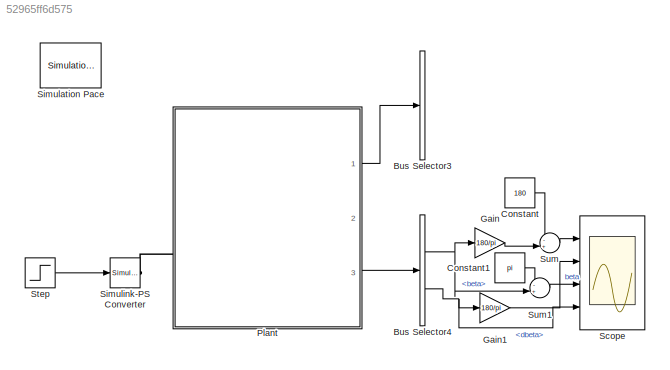
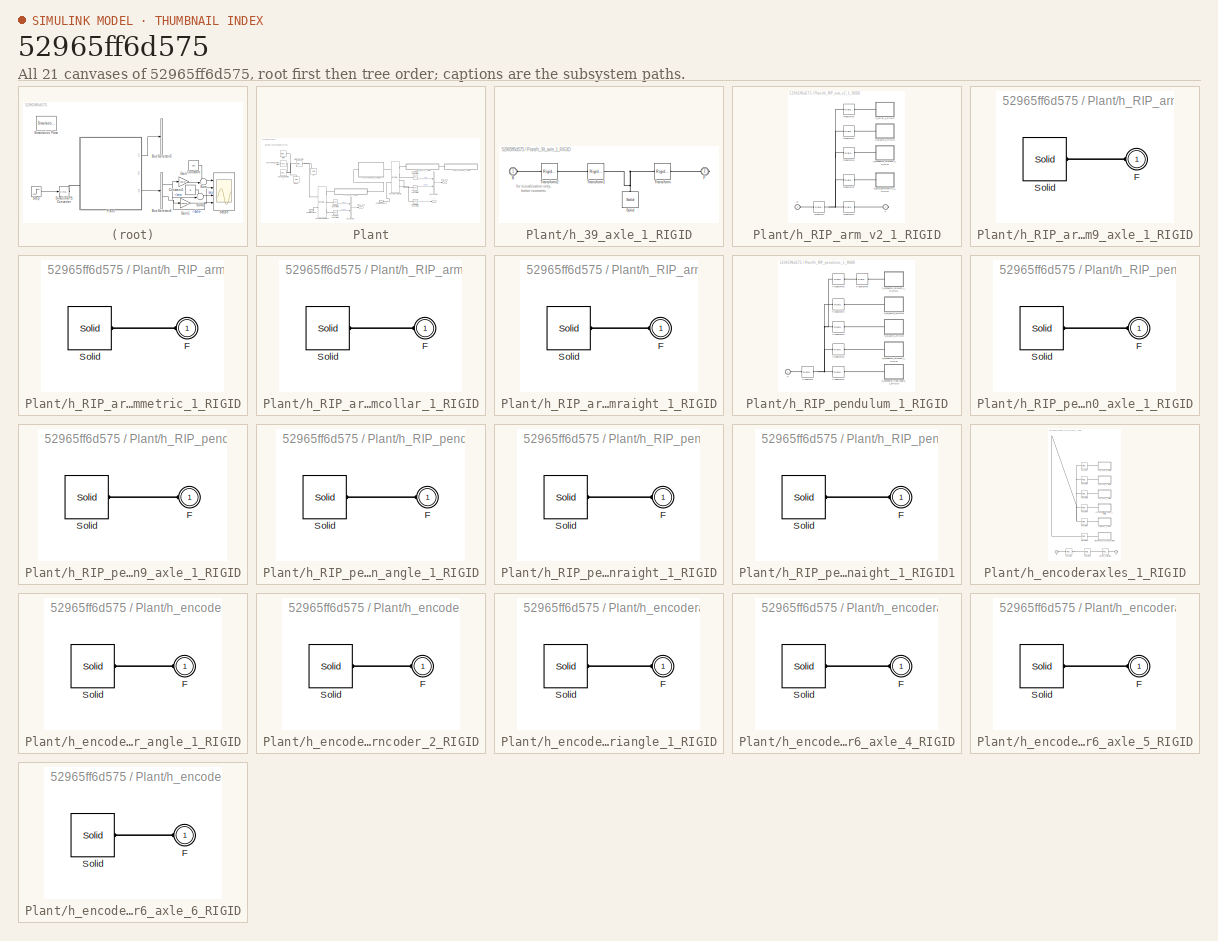
[diagram: thumbnail index - all 21 canvases of the model, root first then tree order]
MODEL slx_52965ff6d575
KIND model
CONFIG AbsTol = auto
CONFIG EnableMultiTasking = on
CONFIG FixedStep = auto
CONFIG MaxStep = 1e-3
CONFIG MinStep = auto
CONFIG PreLoadFcn = RotaryPendulum_PARAM
CONFIG RelTol = 1e-3
CONFIG SampleTimeConstraint = Unconstrained
CONFIG Solver = ode23s
CONFIG SolverName = ode23s
CONFIG StartTime = 0.0
CONFIG StopTime = 2
BLOCK [BusSelector] Bus Selector3
  OutputAsBus = off
  OutputSignals = alpha,dalpha
  Ports = [1, 2]
BLOCK [BusSelector] Bus Selector4
  OutputAsBus = off
  OutputSignals = beta,dbeta
  Ports = [1, 2]
BLOCK [Constant] Constant
  Value = 180
BLOCK [Constant] Constant1
  Value = pi
BLOCK [Gain] Gain
  Gain = 180/pi
  OutDataTypeStr = Inherit: Inherit via internal rule
  ParamDataTypeStr = Inherit: Inherit via internal rule
  SaturateOnIntegerOverflow = off
BLOCK [Gain] Gain1
  Gain = 180/pi
  OutDataTypeStr = Inherit: Inherit via internal rule
  ParamDataTypeStr = Inherit: Inherit via internal rule
  SaturateOnIntegerOverflow = off
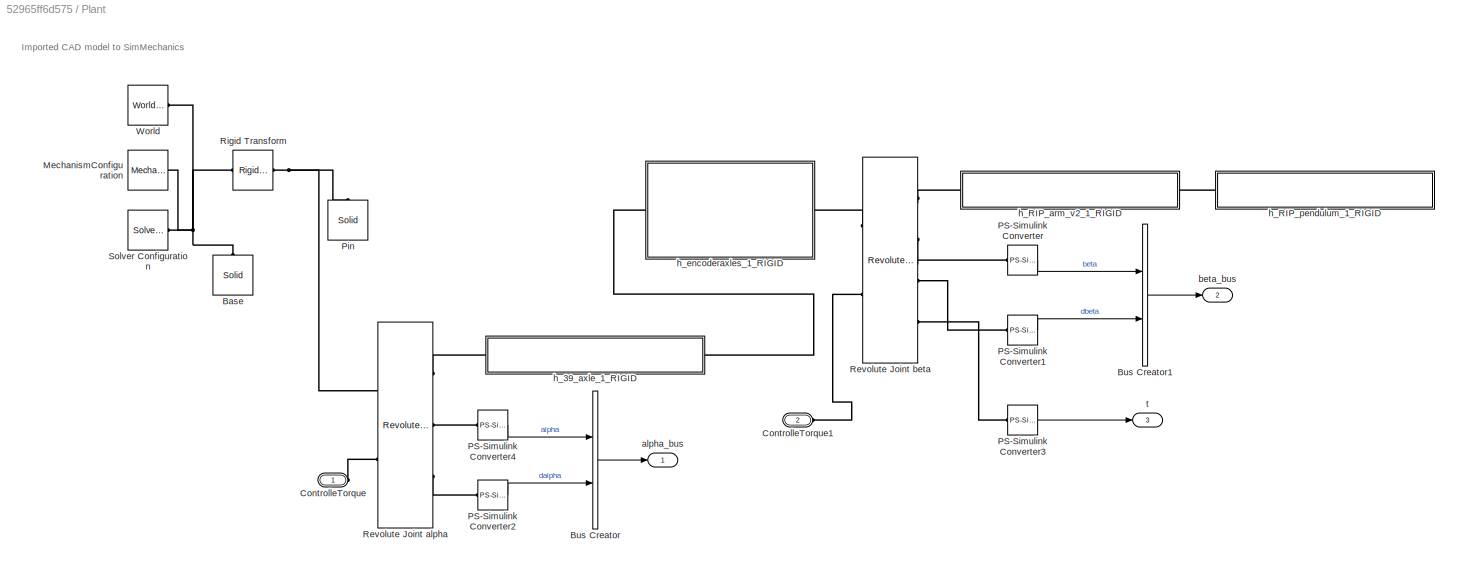
BLOCK [SubSystem] Plant
  Ports = [0, 3, 0, 0, 0, 2]
  RequestExecContextInheritance = off
BLOCK [Reference] Plant/Base  REF=sm_lib/Body Elements/Solid
  Ports = [0, 0, 0, 0, 0, 0, 1]
  SourceBlock = sm_lib/Body Elements/Solid
  SourceProductBaseCode = MS
  SourceProductName = Simscape Multibody
  SourceType = Solid
BLOCK [BusCreator] Plant/Bus Creator
  DisplayOption = bar
  InheritFromInputs = on
  Inputs = 2
  Ports = [2, 1]
BLOCK [BusCreator] Plant/Bus Creator1
  DisplayOption = bar
  InheritFromInputs = on
  Inputs = 2
  Ports = [2, 1]
BLOCK [PMIOPort] Plant/ControlleTorque
  Side = Left
BLOCK [PMIOPort] Plant/ControlleTorque1
  Port = 2
  Side = Left
BLOCK [Reference] Plant/MechanismConfiguration  REF=sm_lib/Utilities/Mechanism
Configuration
  Ports = [0, 0, 0, 0, 0, 0, 1]
  SourceBlock = sm_lib/Utilities/Mechanism\nConfiguration
  SourceProductBaseCode = MS
  SourceProductName = Simscape Multibody
  SourceType = Mechanism\nConfiguration
BLOCK [Reference] Plant/PS-Simulink Converter  REF=nesl_utility/PS-Simulink
Converter
  Ports = [0, 1, 0, 0, 0, 1]
  SourceBlock = nesl_utility/PS-Simulink\nConverter
  SourceProductBaseCode = SS
  SourceProductName = Simscape
  SourceType = PS-Simulink\nConverter
BLOCK [Reference] Plant/PS-Simulink Converter1  REF=nesl_utility/PS-Simulink
Converter
  Ports = [0, 1, 0, 0, 0, 1]
  SourceBlock = nesl_utility/PS-Simulink\nConverter
  SourceProductBaseCode = SS
  SourceProductName = Simscape
  SourceType = PS-Simulink\nConverter
BLOCK [Reference] Plant/PS-Simulink Converter2  REF=nesl_utility/PS-Simulink
Converter
  Ports = [0, 1, 0, 0, 0, 1]
  SourceBlock = nesl_utility/PS-Simulink\nConverter
  SourceProductBaseCode = SS
  SourceProductName = Simscape
  SourceType = PS-Simulink\nConverter
BLOCK [Reference] Plant/PS-Simulink Converter3  REF=nesl_utility/PS-Simulink
Converter
  Ports = [0, 1, 0, 0, 0, 1]
  SourceBlock = nesl_utility/PS-Simulink\nConverter
  SourceProductBaseCode = SS
  SourceProductName = Simscape
  SourceType = PS-Simulink\nConverter
BLOCK [Reference] Plant/PS-Simulink Converter4  REF=nesl_utility/PS-Simulink
Converter
  Ports = [0, 1, 0, 0, 0, 1]
  SourceBlock = nesl_utility/PS-Simulink\nConverter
  SourceProductBaseCode = SS
  SourceProductName = Simscape
  SourceType = PS-Simulink\nConverter
BLOCK [Reference] Plant/Pin  REF=sm_lib/Body Elements/Solid
  Ports = [0, 0, 0, 0, 0, 0, 1]
  SourceBlock = sm_lib/Body Elements/Solid
  SourceProductBaseCode = MS
  SourceProductName = Simscape Multibody
  SourceType = Solid
BLOCK [Reference] Plant/Revolute Joint alpha  REF=sm_lib/Joints/Revolute Joint
  Ports = [0, 0, 0, 0, 0, 2, 3]
  SourceBlock = sm_lib/Joints/Revolute Joint
  SourceProductBaseCode = MS
  SourceProductName = Simscape Multibody
  SourceType = Revolute Joint
BLOCK [Reference] Plant/Revolute Joint beta  REF=sm_lib/Joints/Revolute Joint
  Ports = [0, 0, 0, 0, 0, 2, 4]
  SourceBlock = sm_lib/Joints/Revolute Joint
  SourceProductBaseCode = MS
  SourceProductName = Simscape Multibody
  SourceType = Revolute Joint
BLOCK [Reference] Plant/Rigid Transform  REF=sm_lib/Frames and
Transforms/Rigid
Transform
  Ports = [0, 0, 0, 0, 0, 1, 1]
  SourceBlock = sm_lib/Frames and\nTransforms/Rigid\nTransform
  SourceProductBaseCode = MS
  SourceProductName = Simscape Multibody
  SourceType = Rigid\nTransform
BLOCK [Reference] Plant/Solver Configuration  REF=nesl_utility/Solver
Configuration
  Ports = [0, 0, 0, 0, 0, 0, 1]
  SourceBlock = nesl_utility/Solver\nConfiguration
  SourceProductBaseCode = SS
  SourceProductName = Simscape
  SourceType = Solver\nConfiguration
BLOCK [Reference] Plant/World  REF=sm_lib/Frames and
Transforms/World Frame
  Ports = [0, 0, 0, 0, 0, 0, 1]
  SourceBlock = sm_lib/Frames and\nTransforms/World Frame
  SourceProductBaseCode = MS
  SourceProductName = Simscape Multibody
  SourceType = World Frame
BLOCK [Outport] Plant/alpha_bus
  IconDisplay = Port number
BLOCK [Outport] Plant/beta_bus
  IconDisplay = Port number
  Port = 2
BLOCK [SubSystem] Plant/h_39_axle_1_RIGID
  Ports = [0, 0, 0, 0, 0, 1, 1]
  RequestExecContextInheritance = off
BLOCK [PMIOPort] Plant/h_39_axle_1_RIGID/B
  Side = Left
BLOCK [PMIOPort] Plant/h_39_axle_1_RIGID/F
  Port = 2
  Side = Right
BLOCK [Reference] Plant/h_39_axle_1_RIGID/Solid  REF=sm_lib/Body Elements/Solid
  Ports = [0, 0, 0, 0, 0, 0, 1]
  SourceBlock = sm_lib/Body Elements/Solid
  SourceProductBaseCode = MS
  SourceProductName = Simscape Multibody
  SourceType = Solid
BLOCK [Reference] Plant/h_39_axle_1_RIGID/Transform  REF=sm_lib/Frames and
Transforms/Rigid
Transform
  Ports = [0, 0, 0, 0, 0, 1, 1]
  SourceBlock = sm_lib/Frames and\nTransforms/Rigid\nTransform
  SourceProductBaseCode = MS
  SourceProductName = Simscape Multibody
  SourceType = Rigid\nTransform
BLOCK [Reference] Plant/h_39_axle_1_RIGID/Transform1  REF=sm_lib/Frames and
Transforms/Rigid
Transform
  Ports = [0, 0, 0, 0, 0, 1, 1]
  SourceBlock = sm_lib/Frames and\nTransforms/Rigid\nTransform
  SourceProductBaseCode = MS
  SourceProductName = Simscape Multibody
  SourceType = Rigid\nTransform
BLOCK [Reference] Plant/h_39_axle_1_RIGID/Transform2  REF=sm_lib/Frames and
Transforms/Rigid
Transform
  Ports = [0, 0, 0, 0, 0, 1, 1]
  SourceBlock = sm_lib/Frames and\nTransforms/Rigid\nTransform
  SourceProductBaseCode = MS
  SourceProductName = Simscape Multibody
  SourceType = Rigid\nTransform
BLOCK [SubSystem] Plant/h_RIP_arm_v2_1_RIGID
  Ports = [0, 0, 0, 0, 0, 1, 1]
  RequestExecContextInheritance = off
BLOCK [PMIOPort] Plant/h_RIP_arm_v2_1_RIGID/B
  Side = Left
BLOCK [PMIOPort] Plant/h_RIP_arm_v2_1_RIGID/F
  Port = 2
  Side = Right
BLOCK [Reference] Plant/h_RIP_arm_v2_1_RIGID/Transform  REF=sm_lib/Frames and
Transforms/Rigid
Transform
  Ports = [0, 0, 0, 0, 0, 1, 1]
  SourceBlock = sm_lib/Frames and\nTransforms/Rigid\nTransform
  SourceProductBaseCode = MS
  SourceProductName = Simscape Multibody
  SourceType = Rigid\nTransform
BLOCK [Reference] Plant/h_RIP_arm_v2_1_RIGID/Transform1  REF=sm_lib/Frames and
Transforms/Rigid
Transform
  Ports = [0, 0, 0, 0, 0, 1, 1]
  SourceBlock = sm_lib/Frames and\nTransforms/Rigid\nTransform
  SourceProductBaseCode = MS
  SourceProductName = Simscape Multibody
  SourceType = Rigid\nTransform
BLOCK [Reference] Plant/h_RIP_arm_v2_1_RIGID/Transform2  REF=sm_lib/Frames and
Transforms/Rigid
Transform
  Ports = [0, 0, 0, 0, 0, 1, 1]
  SourceBlock = sm_lib/Frames and\nTransforms/Rigid\nTransform
  SourceProductBaseCode = MS
  SourceProductName = Simscape Multibody
  SourceType = Rigid\nTransform
BLOCK [Reference] Plant/h_RIP_arm_v2_1_RIGID/Transform3  REF=sm_lib/Frames and
Transforms/Rigid
Transform
  Ports = [0, 0, 0, 0, 0, 1, 1]
  SourceBlock = sm_lib/Frames and\nTransforms/Rigid\nTransform
  SourceProductBaseCode = MS
  SourceProductName = Simscape Multibody
  SourceType = Rigid\nTransform
BLOCK [Reference] Plant/h_RIP_arm_v2_1_RIGID/Transform4  REF=sm_lib/Frames and
Transforms/Rigid
Transform
  Ports = [0, 0, 0, 0, 0, 1, 1]
  SourceBlock = sm_lib/Frames and\nTransforms/Rigid\nTransform
  SourceProductBaseCode = MS
  SourceProductName = Simscape Multibody
  SourceType = Rigid\nTransform
BLOCK [Reference] Plant/h_RIP_arm_v2_1_RIGID/Transform5  REF=sm_lib/Frames and
Transforms/Rigid
Transform
  Ports = [0, 0, 0, 0, 0, 1, 1]
  SourceBlock = sm_lib/Frames and\nTransforms/Rigid\nTransform
  SourceProductBaseCode = MS
  SourceProductName = Simscape Multibody
  SourceType = Rigid\nTransform
BLOCK [SubSystem] Plant/h_RIP_arm_v2_1_RIGID/h_39_axle_1_RIGID
  Ports = [0, 0, 0, 0, 0, 1]
  RequestExecContextInheritance = off
BLOCK [PMIOPort] Plant/h_RIP_arm_v2_1_RIGID/h_39_axle_1_RIGID/F
  Side = Left
BLOCK [Reference] Plant/h_RIP_arm_v2_1_RIGID/h_39_axle_1_RIGID/Solid  REF=sm_lib/Body Elements/Solid
  Ports = [0, 0, 0, 0, 0, 0, 1]
  SourceBlock = sm_lib/Body Elements/Solid
  SourceProductBaseCode = MS
  SourceProductName = Simscape Multibody
  SourceType = Solid
BLOCK [SubSystem] Plant/h_RIP_arm_v2_1_RIGID/h_axle_asymmetric_1_RIGID
  Ports = [0, 0, 0, 0, 0, 1]
  RequestExecContextInheritance = off
BLOCK [PMIOPort] Plant/h_RIP_arm_v2_1_RIGID/h_axle_asymmetric_1_RIGID/F
  Side = Left
BLOCK [Reference] Plant/h_RIP_arm_v2_1_RIGID/h_axle_asymmetric_1_RIGID/Solid  REF=sm_lib/Body Elements/Solid
  Ports = [0, 0, 0, 0, 0, 0, 1]
  SourceBlock = sm_lib/Body Elements/Solid
  SourceProductBaseCode = MS
  SourceProductName = Simscape Multibody
  SourceType = Solid
BLOCK [SubSystem] Plant/h_RIP_arm_v2_1_RIGID/h_collar_1_RIGID
  Ports = [0, 0, 0, 0, 0, 1]
  RequestExecContextInheritance = off
BLOCK [PMIOPort] Plant/h_RIP_arm_v2_1_RIGID/h_collar_1_RIGID/F
  Side = Left
BLOCK [Reference] Plant/h_RIP_arm_v2_1_RIGID/h_collar_1_RIGID/Solid  REF=sm_lib/Body Elements/Solid
  Ports = [0, 0, 0, 0, 0, 0, 1]
  SourceBlock = sm_lib/Body Elements/Solid
  SourceProductBaseCode = MS
  SourceProductName = Simscape Multibody
  SourceType = Solid
BLOCK [SubSystem] Plant/h_RIP_arm_v2_1_RIGID/h_connector_straight_1_RIGID
  Ports = [0, 0, 0, 0, 0, 1]
  RequestExecContextInheritance = off
BLOCK [PMIOPort] Plant/h_RIP_arm_v2_1_RIGID/h_connector_straight_1_RIGID/F
  Side = Left
BLOCK [Reference] Plant/h_RIP_arm_v2_1_RIGID/h_connector_straight_1_RIGID/Solid  REF=sm_lib/Body Elements/Solid
  Ports = [0, 0, 0, 0, 0, 0, 1]
  SourceBlock = sm_lib/Body Elements/Solid
  SourceProductBaseCode = MS
  SourceProductName = Simscape Multibody
  SourceType = Solid
BLOCK [SubSystem] Plant/h_RIP_pendulum_1_RIGID
  Ports = [0, 0, 0, 0, 0, 1]
  RequestExecContextInheritance = off
BLOCK [PMIOPort] Plant/h_RIP_pendulum_1_RIGID/F
  Side = Left
BLOCK [Reference] Plant/h_RIP_pendulum_1_RIGID/Transform  REF=sm_lib/Frames and
Transforms/Rigid
Transform
  Ports = [0, 0, 0, 0, 0, 1, 1]
  SourceBlock = sm_lib/Frames and\nTransforms/Rigid\nTransform
  SourceProductBaseCode = MS
  SourceProductName = Simscape Multibody
  SourceType = Rigid\nTransform
BLOCK [Reference] Plant/h_RIP_pendulum_1_RIGID/Transform1  REF=sm_lib/Frames and
Transforms/Rigid
Transform
  Ports = [0, 0, 0, 0, 0, 1, 1]
  SourceBlock = sm_lib/Frames and\nTransforms/Rigid\nTransform
  SourceProductBaseCode = MS
  SourceProductName = Simscape Multibody
  SourceType = Rigid\nTransform
BLOCK [Reference] Plant/h_RIP_pendulum_1_RIGID/Transform2  REF=sm_lib/Frames and
Transforms/Rigid
Transform
  Ports = [0, 0, 0, 0, 0, 1, 1]
  SourceBlock = sm_lib/Frames and\nTransforms/Rigid\nTransform
  SourceProductBaseCode = MS
  SourceProductName = Simscape Multibody
  SourceType = Rigid\nTransform
BLOCK [Reference] Plant/h_RIP_pendulum_1_RIGID/Transform3  REF=sm_lib/Frames and
Transforms/Rigid
Transform
  Ports = [0, 0, 0, 0, 0, 1, 1]
  SourceBlock = sm_lib/Frames and\nTransforms/Rigid\nTransform
  SourceProductBaseCode = MS
  SourceProductName = Simscape Multibody
  SourceType = Rigid\nTransform
BLOCK [Reference] Plant/h_RIP_pendulum_1_RIGID/Transform4  REF=sm_lib/Frames and
Transforms/Rigid
Transform
  Ports = [0, 0, 0, 0, 0, 1, 1]
  SourceBlock = sm_lib/Frames and\nTransforms/Rigid\nTransform
  SourceProductBaseCode = MS
  SourceProductName = Simscape Multibody
  SourceType = Rigid\nTransform
BLOCK [Reference] Plant/h_RIP_pendulum_1_RIGID/Transform5  REF=sm_lib/Frames and
Transforms/Rigid
Transform
  Ports = [0, 0, 0, 0, 0, 1, 1]
  SourceBlock = sm_lib/Frames and\nTransforms/Rigid\nTransform
  SourceProductBaseCode = MS
  SourceProductName = Simscape Multibody
  SourceType = Rigid\nTransform
BLOCK [Reference] Plant/h_RIP_pendulum_1_RIGID/Transform6  REF=sm_lib/Frames and
Transforms/Rigid
Transform
  Ports = [0, 0, 0, 0, 0, 1, 1]
  SourceBlock = sm_lib/Frames and\nTransforms/Rigid\nTransform
  SourceProductBaseCode = MS
  SourceProductName = Simscape Multibody
  SourceType = Rigid\nTransform
BLOCK [SubSystem] Plant/h_RIP_pendulum_1_RIGID/h_10_axle_1_RIGID
  Ports = [0, 0, 0, 0, 0, 1]
  RequestExecContextInheritance = off
BLOCK [PMIOPort] Plant/h_RIP_pendulum_1_RIGID/h_10_axle_1_RIGID/F
  Side = Left
BLOCK [Reference] Plant/h_RIP_pendulum_1_RIGID/h_10_axle_1_RIGID/Solid  REF=sm_lib/Body Elements/Solid
  Ports = [0, 0, 0, 0, 0, 0, 1]
  SourceBlock = sm_lib/Body Elements/Solid
  SourceProductBaseCode = MS
  SourceProductName = Simscape Multibody
  SourceType = Solid
BLOCK [SubSystem] Plant/h_RIP_pendulum_1_RIGID/h_79_axle_1_RIGID
  Ports = [0, 0, 0, 0, 0, 1]
  RequestExecContextInheritance = off
BLOCK [PMIOPort] Plant/h_RIP_pendulum_1_RIGID/h_79_axle_1_RIGID/F
  Side = Left
BLOCK [Reference] Plant/h_RIP_pendulum_1_RIGID/h_79_axle_1_RIGID/Solid  REF=sm_lib/Body Elements/Solid
  Ports = [0, 0, 0, 0, 0, 0, 1]
  SourceBlock = sm_lib/Body Elements/Solid
  SourceProductBaseCode = MS
  SourceProductName = Simscape Multibody
  SourceType = Solid
BLOCK [SubSystem] Plant/h_RIP_pendulum_1_RIGID/h_connector_right_angle_1_RIGID
  Ports = [0, 0, 0, 0, 0, 1]
  RequestExecContextInheritance = off
BLOCK [PMIOPort] Plant/h_RIP_pendulum_1_RIGID/h_connector_right_angle_1_RIGID/F
  Side = Left
BLOCK [Reference] Plant/h_RIP_pendulum_1_RIGID/h_connector_right_angle_1_RIGID/Solid  REF=sm_lib/Body Elements/Solid
  Ports = [0, 0, 0, 0, 0, 0, 1]
  SourceBlock = sm_lib/Body Elements/Solid
  SourceProductBaseCode = MS
  SourceProductName = Simscape Multibody
  SourceType = Solid
BLOCK [SubSystem] Plant/h_RIP_pendulum_1_RIGID/h_connector_straight_1_RIGID
  Ports = [0, 0, 0, 0, 0, 1]
  RequestExecContextInheritance = off
BLOCK [PMIOPort] Plant/h_RIP_pendulum_1_RIGID/h_connector_straight_1_RIGID/F
  Side = Left
BLOCK [Reference] Plant/h_RIP_pendulum_1_RIGID/h_connector_straight_1_RIGID/Solid  REF=sm_lib/Body Elements/Solid
  Ports = [0, 0, 0, 0, 0, 0, 1]
  SourceBlock = sm_lib/Body Elements/Solid
  SourceProductBaseCode = MS
  SourceProductName = Simscape Multibody
  SourceType = Solid
BLOCK [SubSystem] Plant/h_RIP_pendulum_1_RIGID/h_connector_straight_1_RIGID1
  Ports = [0, 0, 0, 0, 0, 1]
  RequestExecContextInheritance = off
BLOCK [PMIOPort] Plant/h_RIP_pendulum_1_RIGID/h_connector_straight_1_RIGID1/F
  Side = Left
BLOCK [Reference] Plant/h_RIP_pendulum_1_RIGID/h_connector_straight_1_RIGID1/Solid  REF=sm_lib/Body Elements/Solid
  Ports = [0, 0, 0, 0, 0, 0, 1]
  SourceBlock = sm_lib/Body Elements/Solid
  SourceProductBaseCode = MS
  SourceProductName = Simscape Multibody
  SourceType = Solid
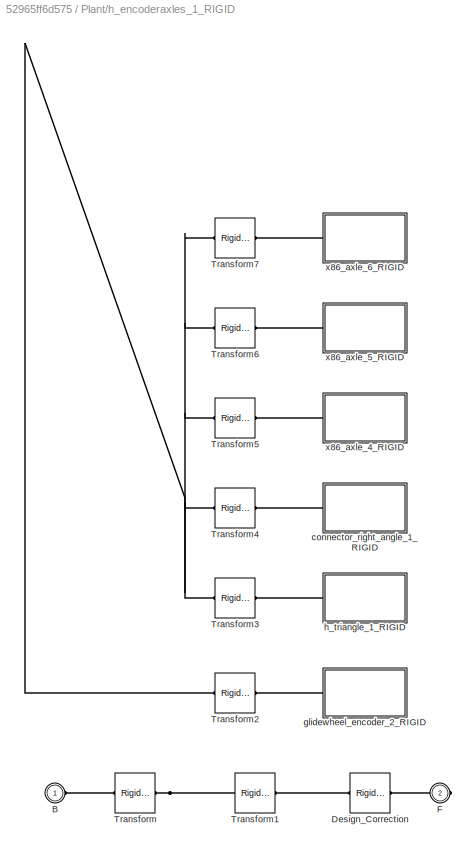
BLOCK [SubSystem] Plant/h_encoderaxles_1_RIGID
  Ports = [0, 0, 0, 0, 0, 1, 1]
  RequestExecContextInheritance = off
BLOCK [PMIOPort] Plant/h_encoderaxles_1_RIGID/B
  Side = Left
BLOCK [Reference] Plant/h_encoderaxles_1_RIGID/Design_Correction  REF=sm_lib/Frames and
Transforms/Rigid
Transform
  Ports = [0, 0, 0, 0, 0, 1, 1]
  SourceBlock = sm_lib/Frames and\nTransforms/Rigid\nTransform
  SourceProductBaseCode = MS
  SourceProductName = Simscape Multibody
  SourceType = Rigid\nTransform
BLOCK [PMIOPort] Plant/h_encoderaxles_1_RIGID/F
  Port = 2
  Side = Right
BLOCK [Reference] Plant/h_encoderaxles_1_RIGID/Transform  REF=sm_lib/Frames and
Transforms/Rigid
Transform
  Ports = [0, 0, 0, 0, 0, 1, 1]
  SourceBlock = sm_lib/Frames and\nTransforms/Rigid\nTransform
  SourceProductBaseCode = MS
  SourceProductName = Simscape Multibody
  SourceType = Rigid\nTransform
BLOCK [Reference] Plant/h_encoderaxles_1_RIGID/Transform1  REF=sm_lib/Frames and
Transforms/Rigid
Transform
  Ports = [0, 0, 0, 0, 0, 1, 1]
  SourceBlock = sm_lib/Frames and\nTransforms/Rigid\nTransform
  SourceProductBaseCode = MS
  SourceProductName = Simscape Multibody
  SourceType = Rigid\nTransform
BLOCK [Reference] Plant/h_encoderaxles_1_RIGID/Transform2  REF=sm_lib/Frames and
Transforms/Rigid
Transform
  Ports = [0, 0, 0, 0, 0, 1, 1]
  SourceBlock = sm_lib/Frames and\nTransforms/Rigid\nTransform
  SourceProductBaseCode = MS
  SourceProductName = Simscape Multibody
  SourceType = Rigid\nTransform
BLOCK [Reference] Plant/h_encoderaxles_1_RIGID/Transform3  REF=sm_lib/Frames and
Transforms/Rigid
Transform
  Ports = [0, 0, 0, 0, 0, 1, 1]
  SourceBlock = sm_lib/Frames and\nTransforms/Rigid\nTransform
  SourceProductBaseCode = MS
  SourceProductName = Simscape Multibody
  SourceType = Rigid\nTransform
BLOCK [Reference] Plant/h_encoderaxles_1_RIGID/Transform4  REF=sm_lib/Frames and
Transforms/Rigid
Transform
  Ports = [0, 0, 0, 0, 0, 1, 1]
  SourceBlock = sm_lib/Frames and\nTransforms/Rigid\nTransform
  SourceProductBaseCode = MS
  SourceProductName = Simscape Multibody
  SourceType = Rigid\nTransform
BLOCK [Reference] Plant/h_encoderaxles_1_RIGID/Transform5  REF=sm_lib/Frames and
Transforms/Rigid
Transform
  Ports = [0, 0, 0, 0, 0, 1, 1]
  SourceBlock = sm_lib/Frames and\nTransforms/Rigid\nTransform
  SourceProductBaseCode = MS
  SourceProductName = Simscape Multibody
  SourceType = Rigid\nTransform
BLOCK [Reference] Plant/h_encoderaxles_1_RIGID/Transform6  REF=sm_lib/Frames and
Transforms/Rigid
Transform
  Ports = [0, 0, 0, 0, 0, 1, 1]
  SourceBlock = sm_lib/Frames and\nTransforms/Rigid\nTransform
  SourceProductBaseCode = MS
  SourceProductName = Simscape Multibody
  SourceType = Rigid\nTransform
BLOCK [Reference] Plant/h_encoderaxles_1_RIGID/Transform7  REF=sm_lib/Frames and
Transforms/Rigid
Transform
  Ports = [0, 0, 0, 0, 0, 1, 1]
  SourceBlock = sm_lib/Frames and\nTransforms/Rigid\nTransform
  SourceProductBaseCode = MS
  SourceProductName = Simscape Multibody
  SourceType = Rigid\nTransform
BLOCK [SubSystem] Plant/h_encoderaxles_1_RIGID/connector_right_angle_1_RIGID
  Ports = [0, 0, 0, 0, 0, 1]
  RequestExecContextInheritance = off
BLOCK [PMIOPort] Plant/h_encoderaxles_1_RIGID/connector_right_angle_1_RIGID/F
  Side = Left
BLOCK [Reference] Plant/h_encoderaxles_1_RIGID/connector_right_angle_1_RIGID/Solid  REF=sm_lib/Body Elements/Solid
  Ports = [0, 0, 0, 0, 0, 0, 1]
  SourceBlock = sm_lib/Body Elements/Solid
  SourceProductBaseCode = MS
  SourceProductName = Simscape Multibody
  SourceType = Solid
BLOCK [SubSystem] Plant/h_encoderaxles_1_RIGID/glidewheel_encoder_2_RIGID
  Ports = [0, 0, 0, 0, 0, 1]
  RequestExecContextInheritance = off
BLOCK [PMIOPort] Plant/h_encoderaxles_1_RIGID/glidewheel_encoder_2_RIGID/F
  Side = Left
BLOCK [Reference] Plant/h_encoderaxles_1_RIGID/glidewheel_encoder_2_RIGID/Solid  REF=sm_lib/Body Elements/Solid
  Ports = [0, 0, 0, 0, 0, 0, 1]
  SourceBlock = sm_lib/Body Elements/Solid
  SourceProductBaseCode = MS
  SourceProductName = Simscape Multibody
  SourceType = Solid
BLOCK [SubSystem] Plant/h_encoderaxles_1_RIGID/h_triangle_1_RIGID
  Ports = [0, 0, 0, 0, 0, 1]
  RequestExecContextInheritance = off
BLOCK [PMIOPort] Plant/h_encoderaxles_1_RIGID/h_triangle_1_RIGID/F
  Side = Left
BLOCK [Reference] Plant/h_encoderaxles_1_RIGID/h_triangle_1_RIGID/Solid  REF=sm_lib/Body Elements/Solid
  Ports = [0, 0, 0, 0, 0, 0, 1]
  SourceBlock = sm_lib/Body Elements/Solid
  SourceProductBaseCode = MS
  SourceProductName = Simscape Multibody
  SourceType = Solid
BLOCK [SubSystem] Plant/h_encoderaxles_1_RIGID/x86_axle_4_RIGID
  Ports = [0, 0, 0, 0, 0, 1]
  RequestExecContextInheritance = off
BLOCK [PMIOPort] Plant/h_encoderaxles_1_RIGID/x86_axle_4_RIGID/F
  Side = Left
BLOCK [Reference] Plant/h_encoderaxles_1_RIGID/x86_axle_4_RIGID/Solid  REF=sm_lib/Body Elements/Solid
  Ports = [0, 0, 0, 0, 0, 0, 1]
  SourceBlock = sm_lib/Body Elements/Solid
  SourceProductBaseCode = MS
  SourceProductName = Simscape Multibody
  SourceType = Solid
BLOCK [SubSystem] Plant/h_encoderaxles_1_RIGID/x86_axle_5_RIGID
  Ports = [0, 0, 0, 0, 0, 1]
  RequestExecContextInheritance = off
BLOCK [PMIOPort] Plant/h_encoderaxles_1_RIGID/x86_axle_5_RIGID/F
  Side = Left
BLOCK [Reference] Plant/h_encoderaxles_1_RIGID/x86_axle_5_RIGID/Solid  REF=sm_lib/Body Elements/Solid
  Ports = [0, 0, 0, 0, 0, 0, 1]
  SourceBlock = sm_lib/Body Elements/Solid
  SourceProductBaseCode = MS
  SourceProductName = Simscape Multibody
  SourceType = Solid
BLOCK [SubSystem] Plant/h_encoderaxles_1_RIGID/x86_axle_6_RIGID
  Ports = [0, 0, 0, 0, 0, 1]
  RequestExecContextInheritance = off
BLOCK [PMIOPort] Plant/h_encoderaxles_1_RIGID/x86_axle_6_RIGID/F
  Side = Left
BLOCK [Reference] Plant/h_encoderaxles_1_RIGID/x86_axle_6_RIGID/Solid  REF=sm_lib/Body Elements/Solid
  Ports = [0, 0, 0, 0, 0, 0, 1]
  SourceBlock = sm_lib/Body Elements/Solid
  SourceProductBaseCode = MS
  SourceProductName = Simscape Multibody
  SourceType = Solid
BLOCK [Outport] Plant/t
  IconDisplay = Port number
  Port = 3
BLOCK [Scope] Scope
  Floating = off
  NumInputPorts = 4
  Ports = [4]
  ScopeSpecificationString = Simulink.scopes.TimeScopeBlockCfg('CurrentConfiguration', extmgr.ConfigurationSet(extmgr.Configuration('Core','General UI',true,'FigureColor',[1 1 1]),extmgr.Configuration('Core','Source UI',true),extmgr.Configuration('Sources','WiredSimulink',true,'DataLoggingVariableName','Alfa','DataLogging',true,'DataLoggingSaveFormat','StructureWithTime'),extmgr.Configuration('Visuals','Time Domain',true,'Ser...<+5295ch>
BLOCK [Reference] Simulation Pace  REF=aerolibanimutils/Simulation Pace
  AttributesFormatString = %<SimulationPace> sec/sec
  Ports = []
  SourceBlock = aerolibanimutils/Simulation Pace
  SourceProductBaseCode = AE
  SourceProductName = Aerospace Blockset
  SourceType = Simulation Pace
BLOCK [Reference] Simulink-PS Converter  REF=nesl_utility/Simulink-PS
Converter
  Ports = [1, 0, 0, 0, 0, 0, 1]
  SourceBlock = nesl_utility/Simulink-PS\nConverter
  SourceProductBaseCode = SS
  SourceProductName = Simscape
  SourceType = Simulink-PS\nConverter
BLOCK [Step] Step
  After = 2e-3
  SampleTime = 0
  Time = 0.1
BLOCK [Sum] Sum
  IconShape = round
  InputSameDT = off
  Inputs = -+|
  OutDataTypeStr = Inherit: Inherit via internal rule
  Ports = [2, 1]
  SaturateOnIntegerOverflow = off
BLOCK [Sum] Sum1
  IconShape = round
  InputSameDT = off
  Inputs = -+|
  OutDataTypeStr = Inherit: Inherit via internal rule
  Ports = [2, 1]
  SaturateOnIntegerOverflow = off
ANNOTATION Plant: Imported CAD model to SimMechanics
ANNOTATION Plant/h_39_axle_1_RIGID: for visualisation only, better isometric
NET Bus Selector4:1 -> Gain:1, Sum1:2
NET Bus Selector4:2 -> Gain1:1, Scope:4
LINE Constant1:1 -> Sum1:1
LINE Constant:1 -> Sum:1
LINE Gain1:1 -> Scope:2
LINE Gain:1 -> Sum:2
LINE Plant/Bus Creator1:1 -> Plant/beta_bus:1
LINE Plant/Bus Creator:1 -> Plant/alpha_bus:1
LINE Plant/PS-Simulink Converter1:1 -> Plant/Bus Creator1:2
LINE Plant/PS-Simulink Converter2:1 -> Plant/Bus Creator:2
LINE Plant/PS-Simulink Converter3:1 -> Plant/t:1
LINE Plant/PS-Simulink Converter4:1 -> Plant/Bus Creator:1
LINE Plant/PS-Simulink Converter:1 -> Plant/Bus Creator1:1
LINE Plant:1 -> Bus Selector3:1
LINE Plant:2 -> Bus Selector4:1
LINE Step:1 -> Simulink-PS Converter:1
LINE Sum1:1 -> Scope:3
LINE Sum:1 -> Scope:1
PNET net1: Plant/Base:RConn1 -- Plant/MechanismConfiguration:RConn1 -- Plant/Rigid Transform:LConn1 -- Plant/Solver Configuration:RConn1 -- Plant/World:RConn1
PLINE Plant/ControlleTorque1:RConn1 -- Plant/Revolute Joint beta:LConn2
PLINE Plant/ControlleTorque:RConn1 -- Plant/Revolute Joint alpha:LConn2
PLINE Plant/PS-Simulink Converter1:LConn1 -- Plant/Revolute Joint beta:RConn3
PLINE Plant/PS-Simulink Converter2:LConn1 -- Plant/Revolute Joint alpha:RConn3
PLINE Plant/PS-Simulink Converter3:LConn1 -- Plant/Revolute Joint beta:RConn4
PLINE Plant/PS-Simulink Converter4:LConn1 -- Plant/Revolute Joint alpha:RConn2
PLINE Plant/PS-Simulink Converter:LConn1 -- Plant/Revolute Joint beta:RConn2
PNET net2: Plant/Pin:RConn1 -- Plant/Revolute Joint alpha:LConn1 -- Plant/Rigid Transform:RConn1
PLINE Plant/Revolute Joint alpha:RConn1 -- Plant/h_39_axle_1_RIGID:LConn1
PLINE Plant/Revolute Joint beta:LConn1 -- Plant/h_encoderaxles_1_RIGID:RConn1
PLINE Plant/Revolute Joint beta:RConn1 -- Plant/h_RIP_arm_v2_1_RIGID:LConn1
PLINE Plant/h_39_axle_1_RIGID/B:RConn1 -- Plant/h_39_axle_1_RIGID/Transform2:LConn1
PLINE Plant/h_39_axle_1_RIGID/F:RConn1 -- Plant/h_39_axle_1_RIGID/Transform:RConn1
PNET net3: Plant/h_39_axle_1_RIGID/Solid:RConn1 -- Plant/h_39_axle_1_RIGID/Transform1:RConn1 -- Plant/h_39_axle_1_RIGID/Transform:LConn1
PLINE Plant/h_39_axle_1_RIGID/Transform1:LConn1 -- Plant/h_39_axle_1_RIGID/Transform2:RConn1
PLINE Plant/h_39_axle_1_RIGID:RConn1 -- Plant/h_encoderaxles_1_RIGID:LConn1
PLINE Plant/h_RIP_arm_v2_1_RIGID/B:RConn1 -- Plant/h_RIP_arm_v2_1_RIGID/Transform:RConn1
PLINE Plant/h_RIP_arm_v2_1_RIGID/F:RConn1 -- Plant/h_RIP_arm_v2_1_RIGID/Transform1:RConn1
PNET net4: Plant/h_RIP_arm_v2_1_RIGID/Transform1:LConn1 -- Plant/h_RIP_arm_v2_1_RIGID/Transform2:LConn1 -- Plant/h_RIP_arm_v2_1_RIGID/Transform3:LConn1 -- Plant/h_RIP_arm_v2_1_RIGID/Transform4:LConn1 -- Plant/h_RIP_arm_v2_1_RIGID/Transform5:LConn1 -- Plant/h_RIP_arm_v2_1_RIGID/Transform:LConn1
PLINE Plant/h_RIP_arm_v2_1_RIGID/Transform2:RConn1 -- Plant/h_RIP_arm_v2_1_RIGID/h_axle_asymmetric_1_RIGID:LConn1
PLINE Plant/h_RIP_arm_v2_1_RIGID/Transform3:RConn1 -- Plant/h_RIP_arm_v2_1_RIGID/h_connector_straight_1_RIGID:LConn1
PLINE Plant/h_RIP_arm_v2_1_RIGID/Transform4:RConn1 -- Plant/h_RIP_arm_v2_1_RIGID/h_39_axle_1_RIGID:LConn1
PLINE Plant/h_RIP_arm_v2_1_RIGID/Transform5:RConn1 -- Plant/h_RIP_arm_v2_1_RIGID/h_collar_1_RIGID:LConn1
PLINE Plant/h_RIP_arm_v2_1_RIGID/h_39_axle_1_RIGID/F:RConn1 -- Plant/h_RIP_arm_v2_1_RIGID/h_39_axle_1_RIGID/Solid:RConn1
PLINE Plant/h_RIP_arm_v2_1_RIGID/h_axle_asymmetric_1_RIGID/F:RConn1 -- Plant/h_RIP_arm_v2_1_RIGID/h_axle_asymmetric_1_RIGID/Solid:RConn1
PLINE Plant/h_RIP_arm_v2_1_RIGID/h_collar_1_RIGID/F:RConn1 -- Plant/h_RIP_arm_v2_1_RIGID/h_collar_1_RIGID/Solid:RConn1
PLINE Plant/h_RIP_arm_v2_1_RIGID/h_connector_straight_1_RIGID/F:RConn1 -- Plant/h_RIP_arm_v2_1_RIGID/h_connector_straight_1_RIGID/Solid:RConn1
PLINE Plant/h_RIP_arm_v2_1_RIGID:RConn1 -- Plant/h_RIP_pendulum_1_RIGID:LConn1
PLINE Plant/h_RIP_pendulum_1_RIGID/F:RConn1 -- Plant/h_RIP_pendulum_1_RIGID/Transform:RConn1
PNET net5: Plant/h_RIP_pendulum_1_RIGID/Transform1:LConn1 -- Plant/h_RIP_pendulum_1_RIGID/Transform2:LConn1 -- Plant/h_RIP_pendulum_1_RIGID/Transform3:LConn1 -- Plant/h_RIP_pendulum_1_RIGID/Transform4:LConn1 -- Plant/h_RIP_pendulum_1_RIGID/Transform5:LConn1 -- Plant/h_RIP_pendulum_1_RIGID/Transform:LConn1
PLINE Plant/h_RIP_pendulum_1_RIGID/Transform1:RConn1 -- Plant/h_RIP_pendulum_1_RIGID/h_connector_right_angle_1_RIGID:LConn1
PLINE Plant/h_RIP_pendulum_1_RIGID/Transform2:RConn1 -- Plant/h_RIP_pendulum_1_RIGID/h_connector_straight_1_RIGID:LConn1
PLINE Plant/h_RIP_pendulum_1_RIGID/Transform3:RConn1 -- Plant/h_RIP_pendulum_1_RIGID/h_10_axle_1_RIGID:LConn1
PLINE Plant/h_RIP_pendulum_1_RIGID/Transform4:RConn1 -- Plant/h_RIP_pendulum_1_RIGID/h_79_axle_1_RIGID:LConn1
PLINE Plant/h_RIP_pendulum_1_RIGID/Transform5:RConn1 -- Plant/h_RIP_pendulum_1_RIGID/Transform6:LConn1
PLINE Plant/h_RIP_pendulum_1_RIGID/Transform6:RConn1 -- Plant/h_RIP_pendulum_1_RIGID/h_connector_straight_1_RIGID1:LConn1
PLINE Plant/h_RIP_pendulum_1_RIGID/h_10_axle_1_RIGID/F:RConn1 -- Plant/h_RIP_pendulum_1_RIGID/h_10_axle_1_RIGID/Solid:RConn1
PLINE Plant/h_RIP_pendulum_1_RIGID/h_79_axle_1_RIGID/F:RConn1 -- Plant/h_RIP_pendulum_1_RIGID/h_79_axle_1_RIGID/Solid:RConn1
PLINE Plant/h_RIP_pendulum_1_RIGID/h_connector_right_angle_1_RIGID/F:RConn1 -- Plant/h_RIP_pendulum_1_RIGID/h_connector_right_angle_1_RIGID/Solid:RConn1
PLINE Plant/h_RIP_pendulum_1_RIGID/h_connector_straight_1_RIGID/F:RConn1 -- Plant/h_RIP_pendulum_1_RIGID/h_connector_straight_1_RIGID/Solid:RConn1
PLINE Plant/h_RIP_pendulum_1_RIGID/h_connector_straight_1_RIGID1/F:RConn1 -- Plant/h_RIP_pendulum_1_RIGID/h_connector_straight_1_RIGID1/Solid:RConn1
PLINE Plant/h_encoderaxles_1_RIGID/B:RConn1 -- Plant/h_encoderaxles_1_RIGID/Transform:RConn1
PLINE Plant/h_encoderaxles_1_RIGID/Design_Correction:LConn1 -- Plant/h_encoderaxles_1_RIGID/Transform1:RConn1
PLINE Plant/h_encoderaxles_1_RIGID/Design_Correction:RConn1 -- Plant/h_encoderaxles_1_RIGID/F:RConn1
PNET net6: Plant/h_encoderaxles_1_RIGID/Transform1:LConn1 -- Plant/h_encoderaxles_1_RIGID/Transform2:LConn1 -- Plant/h_encoderaxles_1_RIGID/Transform3:LConn1 -- Plant/h_encoderaxles_1_RIGID/Transform4:LConn1 -- Plant/h_encoderaxles_1_RIGID/Transform5:LConn1 -- Plant/h_encoderaxles_1_RIGID/Transform6:LConn1 -- Plant/h_encoderaxles_1_RIGID/Transform7:LConn1 -- Plant/h_encoderaxles_1_RIGID/Transform:LConn1
PLINE Plant/h_encoderaxles_1_RIGID/Transform2:RConn1 -- Plant/h_encoderaxles_1_RIGID/glidewheel_encoder_2_RIGID:LConn1
PLINE Plant/h_encoderaxles_1_RIGID/Transform3:RConn1 -- Plant/h_encoderaxles_1_RIGID/h_triangle_1_RIGID:LConn1
PLINE Plant/h_encoderaxles_1_RIGID/Transform4:RConn1 -- Plant/h_encoderaxles_1_RIGID/connector_right_angle_1_RIGID:LConn1
PLINE Plant/h_encoderaxles_1_RIGID/Transform5:RConn1 -- Plant/h_encoderaxles_1_RIGID/x86_axle_4_RIGID:LConn1
PLINE Plant/h_encoderaxles_1_RIGID/Transform6:RConn1 -- Plant/h_encoderaxles_1_RIGID/x86_axle_5_RIGID:LConn1
PLINE Plant/h_encoderaxles_1_RIGID/Transform7:RConn1 -- Plant/h_encoderaxles_1_RIGID/x86_axle_6_RIGID:LConn1
PLINE Plant/h_encoderaxles_1_RIGID/connector_right_angle_1_RIGID/F:RConn1 -- Plant/h_encoderaxles_1_RIGID/connector_right_angle_1_RIGID/Solid:RConn1
PLINE Plant/h_encoderaxles_1_RIGID/glidewheel_encoder_2_RIGID/F:RConn1 -- Plant/h_encoderaxles_1_RIGID/glidewheel_encoder_2_RIGID/Solid:RConn1
PLINE Plant/h_encoderaxles_1_RIGID/h_triangle_1_RIGID/F:RConn1 -- Plant/h_encoderaxles_1_RIGID/h_triangle_1_RIGID/Solid:RConn1
PLINE Plant/h_encoderaxles_1_RIGID/x86_axle_4_RIGID/F:RConn1 -- Plant/h_encoderaxles_1_RIGID/x86_axle_4_RIGID/Solid:RConn1
PLINE Plant/h_encoderaxles_1_RIGID/x86_axle_5_RIGID/F:RConn1 -- Plant/h_encoderaxles_1_RIGID/x86_axle_5_RIGID/Solid:RConn1
PLINE Plant/h_encoderaxles_1_RIGID/x86_axle_6_RIGID/F:RConn1 -- Plant/h_encoderaxles_1_RIGID/x86_axle_6_RIGID/Solid:RConn1
PLINE Plant:LConn2 -- Simulink-PS Converter:RConn1
note: NET lines group one-source signal fan-out (src -> all destinations, sorted); 1:1 wires keep LINE; PNET lines group multi-terminal physical nets as a canonical sorted terminal list (undirected conserving connections); 2-terminal nets keep the pairwise PLINE form
